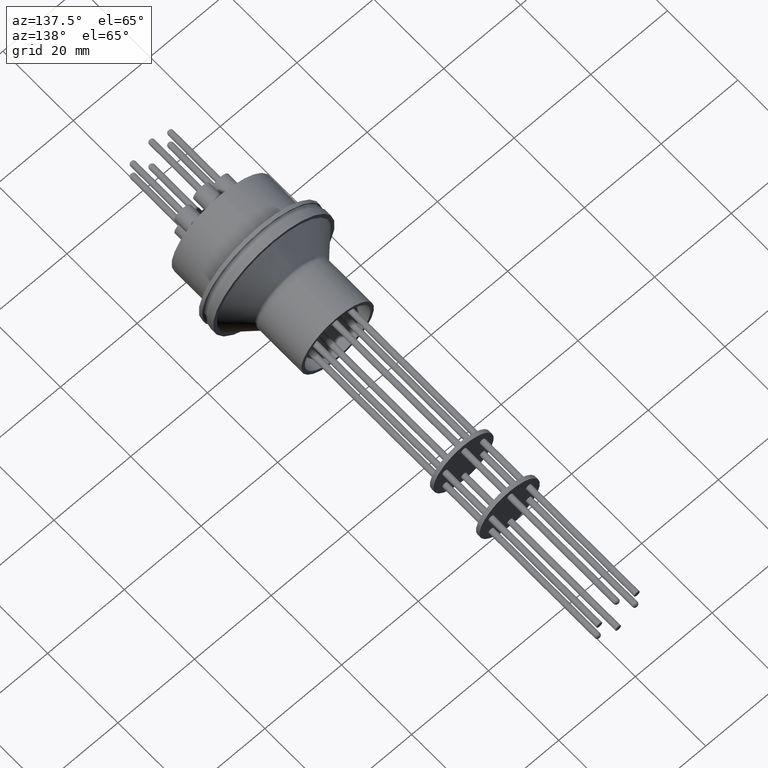
[diagram: clean part render]
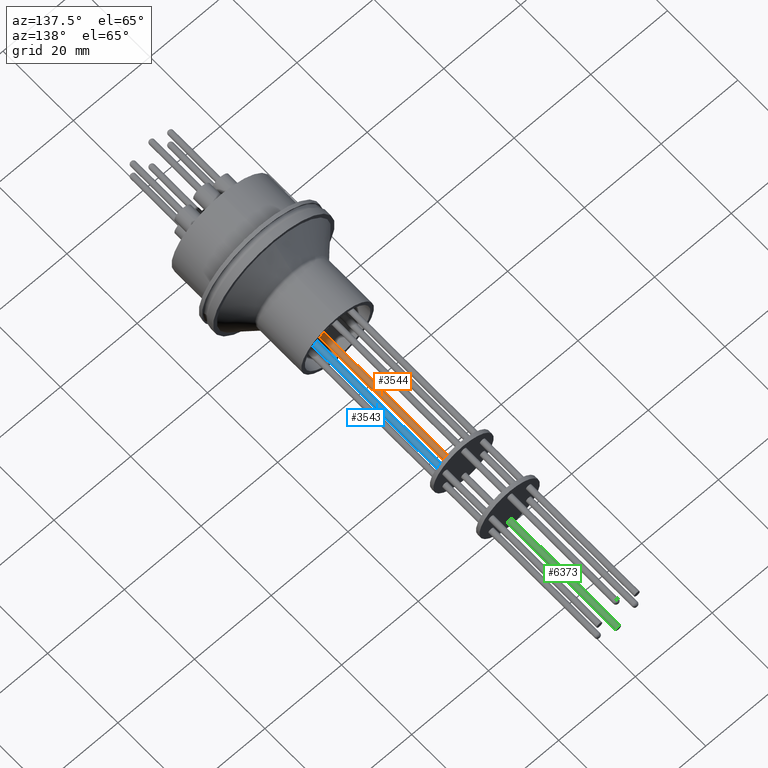
[diagram: same view with three faces highlighted in distinct colors, each labeled with its STEP entity id]
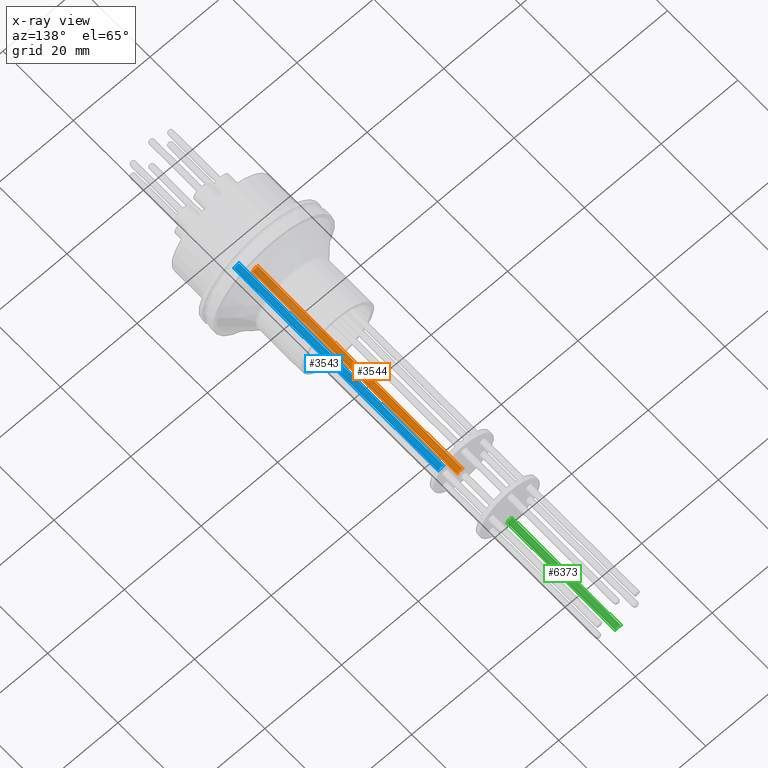
[diagram: x-ray of the same camera — body ghosted, the three highlighted faces saturated]
A machine part, auxiliary view with three faces highlighted in distinct colors.
The next image is the same camera in x-ray (body ghosted, the three faces saturated) — at least one of them is partly hidden behind the body in this view.
Their STEP definitions:

[orange] entity #3544 — the highlighted cylindrical surface (edge-blend (fillet) strip) has radius 0.7112 mm, axis along (-0, -1, -0).
#603 = CARTESIAN_POINT ( 'NONE',  ( -0.05289983635233890700, 4.505306094244423000, -0.2223125649999999900 ) ) ;
#604 = DIRECTION ( 'NONE',  ( -2.006723214947126000E-015, -1.000000000000000000, -1.224606353822379700E-016 ) ) ;
#609 = CARTESIAN_POINT ( 'NONE',  ( -0.02489983635234687500, 0.4422838653356876400, -0.2223125650000004900 ) ) ;
#610 = DIRECTION ( 'NONE',  ( -2.006723214947126000E-015, -1.000000000000000000, -1.224606353822379700E-016 ) ) ;
#611 = DIRECTION ( 'NONE',  ( 1.000000000000000000, -2.439149994343076300E-015, 0.0000000000000000000 ) ) ;
#613 = CARTESIAN_POINT ( 'NONE',  ( -0.02489983635234227800, 2.734228125501689400, -0.2223125650000001800 ) ) ;
#614 = DIRECTION ( 'NONE',  ( -2.006723214947126000E-015, -1.000000000000000000, -1.224606353822379700E-016 ) ) ;
#615 = DIRECTION ( 'NONE',  ( 1.000000000000000000, 0.0000000000000000000, 0.0000000000000000000 ) ) ;
#1017 = AXIS2_PLACEMENT_3D ( 'NONE', #613, #614, #615 ) ;
#1018 = AXIS2_PLACEMENT_3D ( 'NONE', #609, #610, #611 ) ;
#1186 = AXIS2_PLACEMENT_3D ( 'NONE', #3306, #3309, #3311 ) ;
#1516 = VERTEX_POINT ( 'NONE', #6110 ) ;
#1530 = VERTEX_POINT ( 'NONE', #6094 ) ;
#1604 = VERTEX_POINT ( 'NONE', #5971 ) ;
#1620 = VERTEX_POINT ( 'NONE', #5955 ) ;
#1827 = EDGE_LOOP ( 'NONE', ( #1969, #1970, #1971, #1972 ) ) ;
#1969 = ORIENTED_EDGE ( 'NONE', *, *, #4256, .T. ) ;
#1970 = ORIENTED_EDGE ( 'NONE', *, *, #4255, .T. ) ;
#1971 = ORIENTED_EDGE ( 'NONE', *, *, #4254, .F. ) ;
#1972 = ORIENTED_EDGE ( 'NONE', *, *, #4157, .F. ) ;
#2677 = CARTESIAN_POINT ( 'NONE',  ( 0.003100163647661460000, 4.505306094244423000, -0.2223125649999999900 ) ) ;
#2734 = DIRECTION ( 'NONE',  ( -2.006723214947126000E-015, -1.000000000000000000, -1.224606353822379700E-016 ) ) ;
#3306 = CARTESIAN_POINT ( 'NONE',  ( -0.02489983635233872200, 4.505306094244423000, -0.2223125649999999900 ) ) ;
#3309 = DIRECTION ( 'NONE',  ( -2.006723214947126000E-015, -1.000000000000000000, -1.224606353822379700E-016 ) ) ;
#3311 = DIRECTION ( 'NONE',  ( 1.000000000000000000, 0.0000000000000000000, 0.0000000000000000000 ) ) ;
#3544 = ADVANCED_FACE ( 'NONE', ( #6906 ), #6897, .T. ) ;
#4157 = EDGE_CURVE ( 'NONE', #1604, #1516, #6736, .T. ) ;
#4254 = EDGE_CURVE ( 'NONE', #1516, #1530, #6612, .T. ) ;
#4255 = EDGE_CURVE ( 'NONE', #1620, #1530, #6610, .T. ) ;
#4256 = EDGE_CURVE ( 'NONE', #1604, #1620, #6615, .T. ) ;
#5955 = CARTESIAN_POINT ( 'NONE',  ( -0.05289983635234245300, 2.734228125501689400, -0.2223125650000003500 ) ) ;
#5971 = CARTESIAN_POINT ( 'NONE',  ( 0.003100163647657904300, 2.734228125501689400, -0.2223125650000001800 ) ) ;
#6094 = CARTESIAN_POINT ( 'NONE',  ( -0.05289983635234704600, 0.4422838653356877000, -0.2223125650000003500 ) ) ;
#6110 = CARTESIAN_POINT ( 'NONE',  ( 0.003100163647653306800, 0.4422838653356875900, -0.2223125650000004900 ) ) ;
#6608 = VECTOR ( 'NONE', #604, 39.37007874015748100 ) ;
#6610 = LINE ( 'NONE', #603, #6608 ) ;
#6612 = CIRCLE ( 'NONE', #1018, 0.02800000000000018100 ) ;
#6615 = CIRCLE ( 'NONE', #1017, 0.02800000000000018100 ) ;
#6734 = VECTOR ( 'NONE', #2734, 39.37007874015748100 ) ;
#6736 = LINE ( 'NONE', #2677, #6734 ) ;
#6897 = CYLINDRICAL_SURFACE ( 'NONE', #1186, 0.02800000000000018100 ) ;
#6906 = FACE_OUTER_BOUND ( 'NONE', #1827, .T. ) ;

[blue] entity #3543 — the highlighted cylindrical surface (edge-blend (fillet) strip) has radius 0.7112 mm, axis along (-0, -1, -0).
#1074 = AXIS2_PLACEMENT_3D ( 'NONE', #2682, #2683, #2685 ) ;
#1079 = AXIS2_PLACEMENT_3D ( 'NONE', #4755, #4754, #4753 ) ;
#1187 = AXIS2_PLACEMENT_3D ( 'NONE', #3310, #3312, #3317 ) ;
#1508 = VERTEX_POINT ( 'NONE', #6117 ) ;
#1569 = VERTEX_POINT ( 'NONE', #6029 ) ;
#1575 = VERTEX_POINT ( 'NONE', #6017 ) ;
#1586 = VERTEX_POINT ( 'NONE', #5994 ) ;
#1828 = EDGE_LOOP ( 'NONE', ( #1973, #1974, #1975, #1976 ) ) ;
#1973 = ORIENTED_EDGE ( 'NONE', *, *, #4156, .T. ) ;
#1974 = ORIENTED_EDGE ( 'NONE', *, *, #4151, .T. ) ;
#1975 = ORIENTED_EDGE ( 'NONE', *, *, #4146, .F. ) ;
#1976 = ORIENTED_EDGE ( 'NONE', *, *, #4141, .F. ) ;
#2682 = CARTESIAN_POINT ( 'NONE',  ( 0.1676284925181407400, 2.734228125501689400, 0.1111562824999972200 ) ) ;
#2683 = DIRECTION ( 'NONE',  ( -2.006723214947126400E-015, -1.000000000000000000, -1.224606353822388100E-016 ) ) ;
#2685 = DIRECTION ( 'NONE',  ( 1.000000000000000000, 0.0000000000000000000, 0.0000000000000000000 ) ) ;
#3310 = CARTESIAN_POINT ( 'NONE',  ( 0.1676284925181443000, 4.505306094244423900, 0.1111562824999974400 ) ) ;
#3312 = DIRECTION ( 'NONE',  ( -2.006723214947126400E-015, -1.000000000000000000, -1.224606353822388100E-016 ) ) ;
#3317 = DIRECTION ( 'NONE',  ( 1.000000000000000000, 0.0000000000000000000, 0.0000000000000000000 ) ) ;
#3543 = ADVANCED_FACE ( 'NONE', ( #6908 ), #6899, .T. ) ;
#4141 = EDGE_CURVE ( 'NONE', #1569, #1575, #6771, .T. ) ;
#4146 = EDGE_CURVE ( 'NONE', #1575, #1586, #6756, .T. ) ;
#4151 = EDGE_CURVE ( 'NONE', #1508, #1586, #6748, .T. ) ;
#4156 = EDGE_CURVE ( 'NONE', #1569, #1508, #6741, .T. ) ;
#4753 = DIRECTION ( 'NONE',  ( 1.000000000000000000, -2.439149994343075900E-015, 0.0000000000000000000 ) ) ;
#4754 = DIRECTION ( 'NONE',  ( -2.006723214947126400E-015, -1.000000000000000000, -1.224606353822388100E-016 ) ) ;
#4755 = CARTESIAN_POINT ( 'NONE',  ( 0.1676284925181361400, 0.4422838653356876400, 0.1111562824999969600 ) ) ;
#4775 = DIRECTION ( 'NONE',  ( -2.006723214947126400E-015, -1.000000000000000000, -1.224606353822388100E-016 ) ) ;
#4780 = CARTESIAN_POINT ( 'NONE',  ( 0.1956284925181444600, 4.505306094244423900, 0.1111562824999974400 ) ) ;
#4955 = CARTESIAN_POINT ( 'NONE',  ( 0.1396284925181441000, 4.505306094244423900, 0.1111562824999974400 ) ) ;
#4976 = DIRECTION ( 'NONE',  ( -2.006723214947126400E-015, -1.000000000000000000, -1.224606353822388100E-016 ) ) ;
#5994 = CARTESIAN_POINT ( 'NONE',  ( 0.1396284925181359400, 0.4422838653356877000, 0.1111562824999970900 ) ) ;
#6017 = CARTESIAN_POINT ( 'NONE',  ( 0.1956284925181363000, 0.4422838653356875900, 0.1111562824999969600 ) ) ;
#6029 = CARTESIAN_POINT ( 'NONE',  ( 0.1956284925181409300, 2.734228125501689400, 0.1111562824999972200 ) ) ;
#6117 = CARTESIAN_POINT ( 'NONE',  ( 0.1396284925181405500, 2.734228125501689400, 0.1111562824999970900 ) ) ;
#6741 = CIRCLE ( 'NONE', #1074, 0.02800000000000018800 ) ;
#6744 = VECTOR ( 'NONE', #4976, 39.37007874015748100 ) ;
#6748 = LINE ( 'NONE', #4955, #6744 ) ;
#6756 = CIRCLE ( 'NONE', #1079, 0.02800000000000018800 ) ;
#6761 = VECTOR ( 'NONE', #4775, 39.37007874015748100 ) ;
#6771 = LINE ( 'NONE', #4780, #6761 ) ;
#6899 = CYLINDRICAL_SURFACE ( 'NONE', #1187, 0.02800000000000018800 ) ;
#6908 = FACE_OUTER_BOUND ( 'NONE', #1828, .T. ) ;

[green] entity #6373 — the highlighted cylindrical surface (edge-blend (fillet) strip) has radius 0.7112 mm, axis along (-0, -1, -0).
#216 = DIRECTION ( 'NONE',  ( 1.000000000000000000, 0.0000000000000000000, 0.0000000000000000000 ) ) ;
#218 = DIRECTION ( 'NONE',  ( -2.006723214947126000E-015, -1.000000000000000000, -1.224606353822379700E-016 ) ) ;
#220 = CARTESIAN_POINT ( 'NONE',  ( -0.02489983635233872200, 4.505306094244423000, -0.2223125649999999900 ) ) ;
#301 = AXIS2_PLACEMENT_3D ( 'NONE', #220, #218, #216 ) ;
#897 = AXIS2_PLACEMENT_3D ( 'NONE', #3818, #3819, #3820 ) ;
#900 = AXIS2_PLACEMENT_3D ( 'NONE', #3802, #3803, #3804 ) ;
#1512 = VERTEX_POINT ( 'NONE', #6113 ) ;
#1595 = VERTEX_POINT ( 'NONE', #5980 ) ;
#1693 = VERTEX_POINT ( 'NONE', #5882 ) ;
#1911 = EDGE_LOOP ( 'NONE', ( #2074, #2075, #2076, #2077 ) ) ;
#2074 = ORIENTED_EDGE ( 'NONE', *, *, #4397, .T. ) ;
#2075 = ORIENTED_EDGE ( 'NONE', *, *, #4399, .T. ) ;
#2076 = ORIENTED_EDGE ( 'NONE', *, *, #4402, .F. ) ;
#2077 = ORIENTED_EDGE ( 'NONE', *, *, #4403, .F. ) ;
#3802 = CARTESIAN_POINT ( 'NONE',  ( -0.02489983635233872200, 4.505306094244423000, -0.2223125649999999900 ) ) ;
#3803 = DIRECTION ( 'NONE',  ( -2.006723214947126000E-015, -1.000000000000000000, -1.224606353822379700E-016 ) ) ;
#3804 = DIRECTION ( 'NONE',  ( 1.000000000000000000, 0.0000000000000000000, 0.0000000000000000000 ) ) ;
#3807 = CARTESIAN_POINT ( 'NONE',  ( -0.05289983635233890700, 4.505306094244423000, -0.2223125649999999900 ) ) ;
#3808 = DIRECTION ( 'NONE',  ( -2.006723214947126000E-015, -1.000000000000000000, -1.224606353822379700E-016 ) ) ;
#3812 = CARTESIAN_POINT ( 'NONE',  ( 0.003100163647661460000, 4.505306094244423000, -0.2223125649999999900 ) ) ;
#3813 = DIRECTION ( 'NONE',  ( -2.006723214947126000E-015, -1.000000000000000000, -1.224606353822379700E-016 ) ) ;
#3818 = CARTESIAN_POINT ( 'NONE',  ( -0.02489983635234115800, 3.291458398179453400, -0.2223125650000001300 ) ) ;
#3819 = DIRECTION ( 'NONE',  ( -2.006723214947126000E-015, -1.000000000000000000, -1.224606353822379700E-016 ) ) ;
#3820 = DIRECTION ( 'NONE',  ( 1.000000000000000000, 0.0000000000000000000, 0.0000000000000000000 ) ) ;
#3903 = CARTESIAN_POINT ( 'NONE',  ( -0.05289983635233890700, 4.505306094244423000, -0.2223125650000000500 ) ) ;
#4397 = EDGE_CURVE ( 'NONE', #1693, #4803, #6425, .T. ) ;
#4399 = EDGE_CURVE ( 'NONE', #4803, #1595, #6423, .T. ) ;
#4402 = EDGE_CURVE ( 'NONE', #1512, #1595, #6416, .T. ) ;
#4403 = EDGE_CURVE ( 'NONE', #1693, #1512, #6414, .T. ) ;
#4803 = VERTEX_POINT ( 'NONE', #3903 ) ;
#5882 = CARTESIAN_POINT ( 'NONE',  ( 0.003100163647661460000, 4.505306094244423000, -0.2223125649999999900 ) ) ;
#5980 = CARTESIAN_POINT ( 'NONE',  ( -0.05289983635234134200, 3.291458398179453400, -0.2223125650000000500 ) ) ;
#6113 = CARTESIAN_POINT ( 'NONE',  ( 0.003100163647659022300, 3.291458398179453400, -0.2223125650000001300 ) ) ;
#6297 = CYLINDRICAL_SURFACE ( 'NONE', #301, 0.02800000000000018100 ) ;
#6310 = FACE_OUTER_BOUND ( 'NONE', #1911, .T. ) ;
#6373 = ADVANCED_FACE ( 'NONE', ( #6310 ), #6297, .T. ) ;
#6412 = VECTOR ( 'NONE', #3813, 39.37007874015748100 ) ;
#6414 = LINE ( 'NONE', #3812, #6412 ) ;
#6416 = CIRCLE ( 'NONE', #897, 0.02800000000000018100 ) ;
#6420 = VECTOR ( 'NONE', #3808, 39.37007874015748100 ) ;
#6423 = LINE ( 'NONE', #3807, #6420 ) ;
#6425 = CIRCLE ( 'NONE', #900, 0.02800000000000018100 ) ;